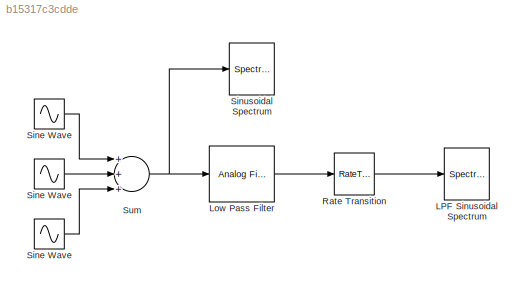
MODEL slx_b15317c3cdde
KIND model
BLOCK [Sin]  Sine Wave 
  Amplitude = 0.2
  Frequency = 5000*pi
  Ports = [0, 1]
  SampleTime = 1.25e-6
BLOCK [SpectrumAnalyzer] LPF Sinusoidal Spectrum
  CloseFcn = scopeextensions.ScopeBlock.callback(gcbh, 'onBlockClose');
  CopyFcn = scopeextensions.ScopeBlock.callback(gcbh, 'onBlockCopy', gcbh);
  DeleteFcn = scopeextensions.ScopeBlock.callback(gcbh, 'onBlockDelete');
  NameChangeFcn = scopeextensions.ScopeBlock.callback(gcbh, 'onBlockRename');
  Ports = [1]
  PreDeleteFcn = scopeextensions.ScopeBlock.callback(gcbh, 'onBlockPreDelete');
  PreSaveFcn = scopeextensions.ScopeBlock.callback(gcbh, 'onModelSave');
  UserDataPersistent = on
BLOCK [Reference] Low Pass Filter  REF=dsparch4/Analog
Filter Design
  N = 3
  Ports = [1, 1]
  Rp = 2
  Rs = 40
  SourceBlock = dsparch4/Analog\nFilter Design
  SourceType = Analog Filter Design
  Whi = 80
  Wlo = pi*2500
  filttype = Lowpass
  method = Butterworth
BLOCK [RateTransition] Rate Transition
  OutPortSampleTime = 1.25e-6
BLOCK [Sin] Sine Wave
  Frequency = 1000*pi
  Ports = [0, 1]
  SampleTime = 1.25e-6
BLOCK [Sin] Sine Wave 
  Amplitude = 0.5
  Frequency = 3000*pi
  Ports = [0, 1]
  SampleTime = 1.25e-6
BLOCK [SpectrumAnalyzer] Sinusoidal Spectrum
  CloseFcn = scopeextensions.ScopeBlock.callback(gcbh, 'onBlockClose');
  CopyFcn = scopeextensions.ScopeBlock.callback(gcbh, 'onBlockCopy', gcbh);
  DeleteFcn = scopeextensions.ScopeBlock.callback(gcbh, 'onBlockDelete');
  NameChangeFcn = scopeextensions.ScopeBlock.callback(gcbh, 'onBlockRename');
  Ports = [1]
  PreDeleteFcn = scopeextensions.ScopeBlock.callback(gcbh, 'onBlockPreDelete');
  PreSaveFcn = scopeextensions.ScopeBlock.callback(gcbh, 'onModelSave');
  UserDataPersistent = on
BLOCK [Sum] Sum
  InputSameDT = off
  Inputs = +++
  OutDataTypeStr = Inherit: Inherit via internal rule
  Ports = [3, 1]
  SaturateOnIntegerOverflow = off
LINE  Sine Wave :1 -> Sum:3
LINE Low Pass Filter:1 -> Rate Transition:1
LINE Rate Transition:1 -> LPF Sinusoidal Spectrum:1
LINE Sine Wave :1 -> Sum:2
LINE Sine Wave:1 -> Sum:1
NET Sum:1 -> Low Pass Filter:1, Sinusoidal Spectrum:1
note: NET lines group one-source signal fan-out (src -> all destinations, sorted); 1:1 wires keep LINE
